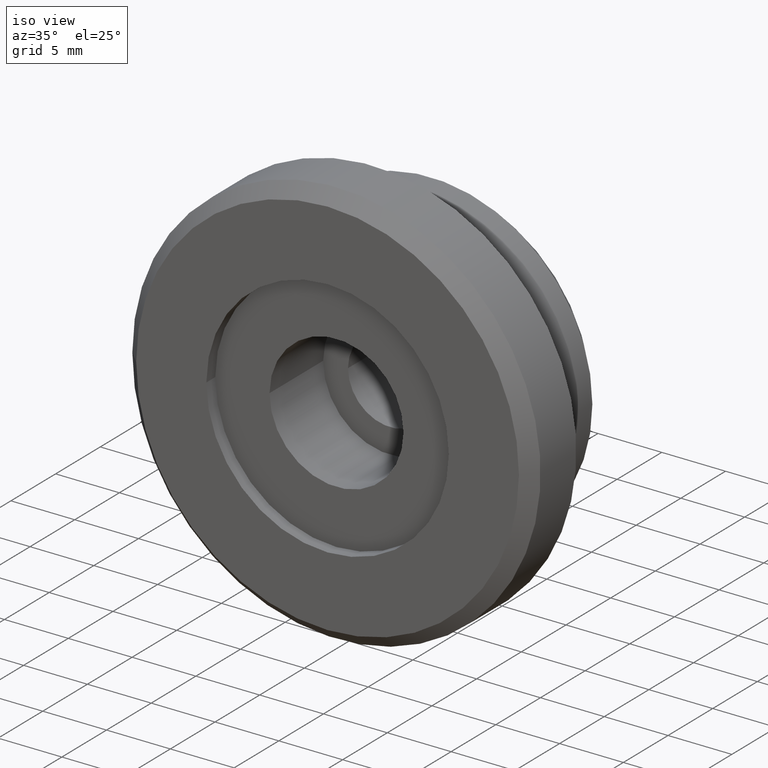
[diagram: clean part render]
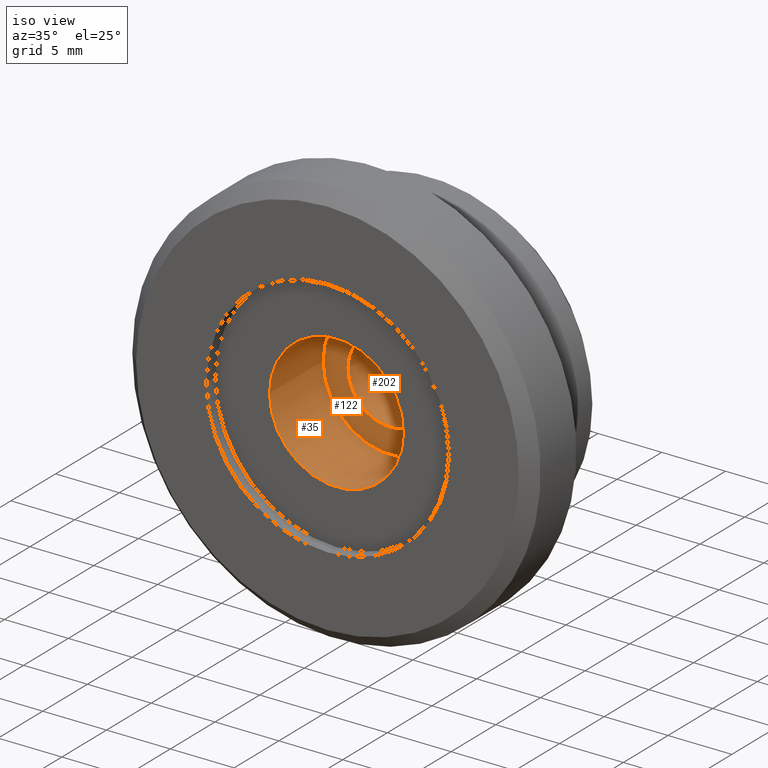
[diagram: same view with one multi-face feature highlighted, each face labeled with its STEP entity id]
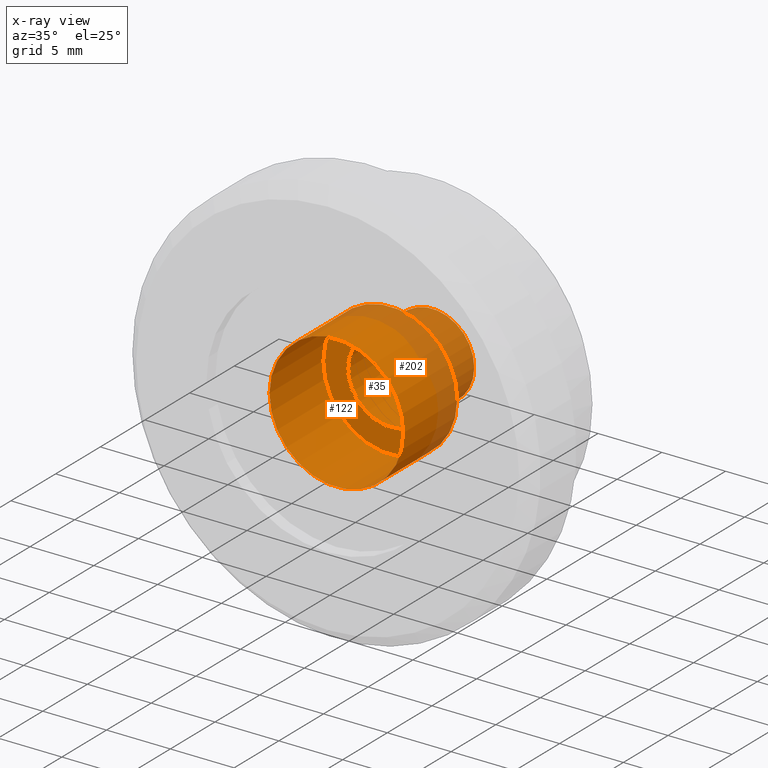
[diagram: x-ray of the same camera — body ghosted, the whole feature saturated]
A machine part, iso view. The highlighted faces form ONE feature: a stepped (counterbored) hole: 2 coaxial cylindrical walls of radii 3.3 -> 5.25 mm joined by 1 annular planar shoulder face(s). The faces share edges in the B-rep.
The next image is the same camera in x-ray: the body ghosted and the whole hole feature saturated, so the bore chain is visible through the body.
Their STEP definitions:
[1] entity #35 (Cylinder):
#1 = EDGE_CURVE ( 'NONE', #7, #7, #230, .T. ) ;
#5 = AXIS2_PLACEMENT_3D ( 'NONE', #332, #20, #184 ) ;
#7 = VERTEX_POINT ( 'NONE', #109 ) ;
#20 = DIRECTION ( 'NONE',  ( -3.414809992080329023E-17, 1.000000000000000000, 0.000000000000000000 ) ) ;
#34 = DIRECTION ( 'NONE',  ( -1.000000000000000000, 0.000000000000000000, 0.000000000000000000 ) ) ;
#35 = ADVANCED_FACE ( 'NONE', ( #156, #71 ), #302, .F. ) ;
#61 = DIRECTION ( 'NONE',  ( 3.414809992080329023E-17, -1.000000000000000000, -0.000000000000000000 ) ) ;
#71 = FACE_OUTER_BOUND ( 'NONE', #229, .T. ) ;
#109 = CARTESIAN_POINT ( 'NONE',  ( -5.249999999999999112, -5.399999999999983480, 0.000000000000000000 ) ) ;
#115 = ORIENTED_EDGE ( 'NONE', *, *, #1, .F. ) ;
#121 = CIRCLE ( 'NONE', #337, 5.249999999999999112 ) ;
#124 = EDGE_LOOP ( 'NONE', ( #203 ) ) ;
#127 = EDGE_CURVE ( 'NONE', #331, #331, #121, .T. ) ;
#156 = FACE_OUTER_BOUND ( 'NONE', #124, .T. ) ;
#184 = DIRECTION ( 'NONE',  ( -1.000000000000000000, 0.000000000000000000, 0.000000000000000000 ) ) ;
#189 = DIRECTION ( 'NONE',  ( -3.414809992080329023E-17, 1.000000000000000000, 0.000000000000000000 ) ) ;
#197 = AXIS2_PLACEMENT_3D ( 'NONE', #201, #61, #34 ) ;
#201 = CARTESIAN_POINT ( 'NONE',  ( -6.829619984160724606E-17, -5.399999999999983480, 0.000000000000000000 ) ) ;
#203 = ORIENTED_EDGE ( 'NONE', *, *, #127, .F. ) ;
#229 = EDGE_LOOP ( 'NONE', ( #115 ) ) ;
#230 = CIRCLE ( 'NONE', #197, 5.249999999999999112 ) ;
#240 = CARTESIAN_POINT ( 'NONE',  ( -5.249999999999999112, -11.39999999999993641, 0.000000000000000000 ) ) ;
#302 = CYLINDRICAL_SURFACE ( 'NONE', #5, 5.249999999999999112 ) ;
#331 = VERTEX_POINT ( 'NONE', #240 ) ;
#332 = CARTESIAN_POINT ( 'NONE',  ( 1.707404996040190150E-16, -12.40000000000007674, 0.000000000000000000 ) ) ;
#335 = CARTESIAN_POINT ( 'NONE',  ( 1.365923996832108929E-16, -11.39999999999993641, 0.000000000000000000 ) ) ;
#337 = AXIS2_PLACEMENT_3D ( 'NONE', #335, #189, #360 ) ;
#360 = DIRECTION ( 'NONE',  ( -1.000000000000000000, 0.000000000000000000, 0.000000000000000000 ) ) ;
[2] entity #202 (Cylinder):
#11 = DIRECTION ( 'NONE',  ( -3.414809992080329023E-17, 1.000000000000000000, 0.000000000000000000 ) ) ;
#29 = CIRCLE ( 'NONE', #76, 3.299999999999999822 ) ;
#53 = AXIS2_PLACEMENT_3D ( 'NONE', #168, #11, #314 ) ;
#57 = FACE_OUTER_BOUND ( 'NONE', #322, .T. ) ;
#76 = AXIS2_PLACEMENT_3D ( 'NONE', #282, #129, #160 ) ;
#89 = CARTESIAN_POINT ( 'NONE',  ( -6.829619984160724606E-17, -5.399999999999983480, 0.000000000000000000 ) ) ;
#100 = EDGE_CURVE ( 'NONE', #294, #294, #29, .T. ) ;
#113 = CYLINDRICAL_SURFACE ( 'NONE', #53, 3.299999999999999822 ) ;
#129 = DIRECTION ( 'NONE',  ( 3.414809992080329023E-17, -1.000000000000000000, -0.000000000000000000 ) ) ;
#139 = DIRECTION ( 'NONE',  ( -3.414809992080329023E-17, 1.000000000000000000, 0.000000000000000000 ) ) ;
#160 = DIRECTION ( 'NONE',  ( -1.000000000000000000, -3.285461128743953148E-17, 0.000000000000000000 ) ) ;
#168 = CARTESIAN_POINT ( 'NONE',  ( 1.707404996040190150E-16, -12.40000000000007674, 0.000000000000000000 ) ) ;
#182 = CARTESIAN_POINT ( 'NONE',  ( -3.299999999999999822, -5.399999999999983480, 0.000000000000000000 ) ) ;
#193 = AXIS2_PLACEMENT_3D ( 'NONE', #89, #139, #291 ) ;
#202 = ADVANCED_FACE ( 'NONE', ( #228, #57 ), #113, .F. ) ;
#212 = CARTESIAN_POINT ( 'NONE',  ( -3.300000000000000266, -0.7000000000000704548, 0.000000000000000000 ) ) ;
#228 = FACE_OUTER_BOUND ( 'NONE', #269, .T. ) ;
#237 = ORIENTED_EDGE ( 'NONE', *, *, #278, .F. ) ;
#269 = EDGE_LOOP ( 'NONE', ( #237 ) ) ;
#271 = VERTEX_POINT ( 'NONE', #182 ) ;
#278 = EDGE_CURVE ( 'NONE', #271, #271, #293, .T. ) ;
#282 = CARTESIAN_POINT ( 'NONE',  ( -2.287922694693797149E-16, -0.7000000000000703437, 0.000000000000000000 ) ) ;
#291 = DIRECTION ( 'NONE',  ( -1.000000000000000000, 0.000000000000000000, 0.000000000000000000 ) ) ;
#293 = CIRCLE ( 'NONE', #193, 3.299999999999999822 ) ;
#294 = VERTEX_POINT ( 'NONE', #212 ) ;
#300 = ORIENTED_EDGE ( 'NONE', *, *, #100, .F. ) ;
#314 = DIRECTION ( 'NONE',  ( -1.000000000000000000, 0.000000000000000000, 0.000000000000000000 ) ) ;
#322 = EDGE_LOOP ( 'NONE', ( #300 ) ) ;
[3] entity #122 (Plane):
#1 = EDGE_CURVE ( 'NONE', #7, #7, #230, .T. ) ;
#7 = VERTEX_POINT ( 'NONE', #109 ) ;
#34 = DIRECTION ( 'NONE',  ( -1.000000000000000000, 0.000000000000000000, 0.000000000000000000 ) ) ;
#40 = CARTESIAN_POINT ( 'NONE',  ( 5.249999999999999112, -5.399999999999983480, 0.000000000000000000 ) ) ;
#61 = DIRECTION ( 'NONE',  ( 3.414809992080329023E-17, -1.000000000000000000, -0.000000000000000000 ) ) ;
#68 = DIRECTION ( 'NONE',  ( 3.414809992080329023E-17, -1.000000000000000000, 0.000000000000000000 ) ) ;
#89 = CARTESIAN_POINT ( 'NONE',  ( -6.829619984160724606E-17, -5.399999999999983480, 0.000000000000000000 ) ) ;
#101 = FACE_BOUND ( 'NONE', #326, .T. ) ;
#104 = AXIS2_PLACEMENT_3D ( 'NONE', #40, #68, #368 ) ;
#109 = CARTESIAN_POINT ( 'NONE',  ( -5.249999999999999112, -5.399999999999983480, 0.000000000000000000 ) ) ;
#122 = ADVANCED_FACE ( 'NONE', ( #333, #101 ), #216, .T. ) ;
#139 = DIRECTION ( 'NONE',  ( -3.414809992080329023E-17, 1.000000000000000000, 0.000000000000000000 ) ) ;
#146 = ORIENTED_EDGE ( 'NONE', *, *, #278, .T. ) ;
#182 = CARTESIAN_POINT ( 'NONE',  ( -3.299999999999999822, -5.399999999999983480, 0.000000000000000000 ) ) ;
#193 = AXIS2_PLACEMENT_3D ( 'NONE', #89, #139, #291 ) ;
#197 = AXIS2_PLACEMENT_3D ( 'NONE', #201, #61, #34 ) ;
#201 = CARTESIAN_POINT ( 'NONE',  ( -6.829619984160724606E-17, -5.399999999999983480, 0.000000000000000000 ) ) ;
#216 = PLANE ( 'NONE',  #104 ) ;
#230 = CIRCLE ( 'NONE', #197, 5.249999999999999112 ) ;
#271 = VERTEX_POINT ( 'NONE', #182 ) ;
#278 = EDGE_CURVE ( 'NONE', #271, #271, #293, .T. ) ;
#291 = DIRECTION ( 'NONE',  ( -1.000000000000000000, 0.000000000000000000, 0.000000000000000000 ) ) ;
#293 = CIRCLE ( 'NONE', #193, 3.299999999999999822 ) ;
#320 = EDGE_LOOP ( 'NONE', ( #351 ) ) ;
#326 = EDGE_LOOP ( 'NONE', ( #146 ) ) ;
#333 = FACE_OUTER_BOUND ( 'NONE', #320, .T. ) ;
#351 = ORIENTED_EDGE ( 'NONE', *, *, #1, .T. ) ;
#368 = DIRECTION ( 'NONE',  ( 1.000000000000000000, 3.414809992080329023E-17, 0.000000000000000000 ) ) ;